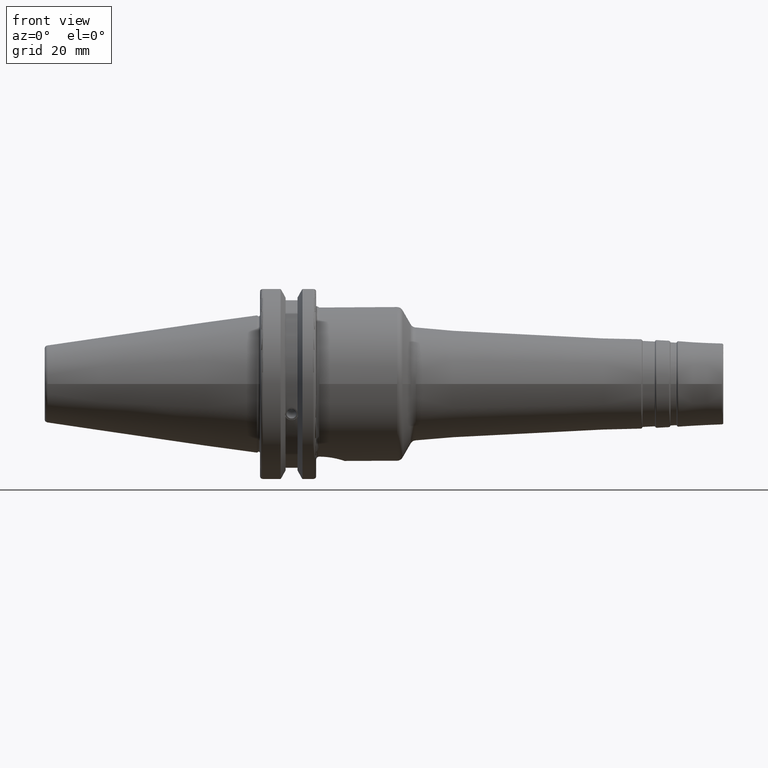
[diagram: clean part render]
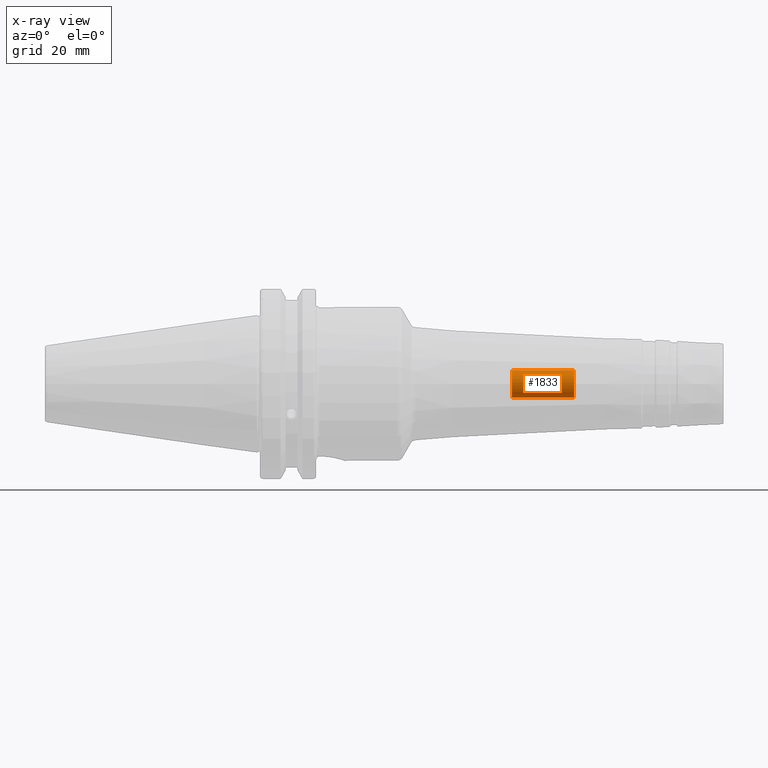
[diagram: x-ray — body ghosted, one internal face saturated and labeled with its STEP entity id]
A machine part, front view, then the same camera in x-ray: the body is ghosted and one INTERNAL B-rep face — a face not visible from any outside direction — is saturated and labeled: STEP entity #1833.
In plain terms, the highlighted cylindrical surface (bore or boss wall) has radius 4.4587 mm, axis along (1, 0, 0).
Its self-contained STEP definition (entity closure, byte-faithful):
#181=FACE_OUTER_BOUND('',#290,.T.);
#290=EDGE_LOOP('',(#1235,#1236,#1237,#1238));
#410=LINE('',#2909,#508);
#508=VECTOR('',#2239,4.458734);
#607=CIRCLE('',#1968,4.458734);
#608=CIRCLE('',#1970,4.458734);
#736=VERTEX_POINT('',#2903);
#737=VERTEX_POINT('',#2907);
#932=EDGE_CURVE('',#736,#736,#607,.T.);
#934=EDGE_CURVE('',#737,#737,#608,.T.);
#935=EDGE_CURVE('',#737,#736,#410,.T.);
#1235=ORIENTED_EDGE('',*,*,#934,.F.);
#1236=ORIENTED_EDGE('',*,*,#935,.T.);
#1237=ORIENTED_EDGE('',*,*,#932,.F.);
#1238=ORIENTED_EDGE('',*,*,#935,.F.);
#1801=CYLINDRICAL_SURFACE('',#1969,4.458734);
#1833=ADVANCED_FACE('',(#181),#1801,.F.);
#1968=AXIS2_PLACEMENT_3D('',#2904,#2232,#2233);
#1969=AXIS2_PLACEMENT_3D('',#2906,#2235,#2236);
#1970=AXIS2_PLACEMENT_3D('',#2908,#2237,#2238);
#2232=DIRECTION('center_axis',(1.,0.,0.));
#2233=DIRECTION('ref_axis',(0.,0.,-1.));
#2235=DIRECTION('center_axis',(1.,0.,0.));
#2236=DIRECTION('ref_axis',(0.,0.,-1.));
#2237=DIRECTION('center_axis',(-1.,0.,0.));
#2238=DIRECTION('ref_axis',(0.,0.,-1.));
#2239=DIRECTION('',(-1.,0.,0.));
#2903=CARTESIAN_POINT('',(82.,-5.46037432134948E-16,4.458734));
#2904=CARTESIAN_POINT('Origin',(82.,0.,0.));
#2906=CARTESIAN_POINT('Origin',(92.,0.,0.));
#2907=CARTESIAN_POINT('',(102.,-5.46037432134947E-16,4.458734));
#2908=CARTESIAN_POINT('Origin',(102.,0.,0.));
#2909=CARTESIAN_POINT('',(92.,-5.46037432134947E-16,4.458734));